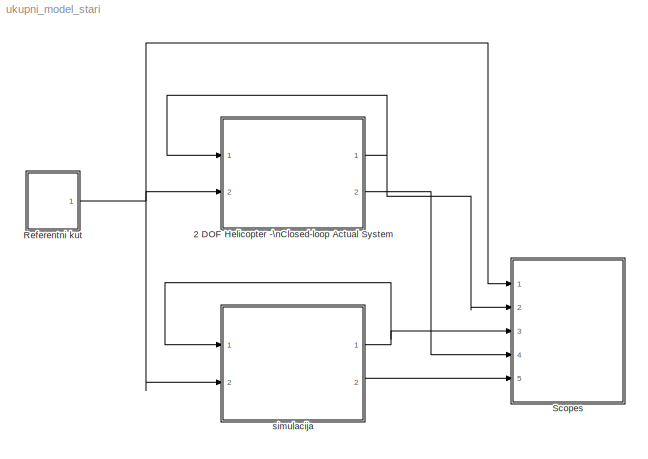
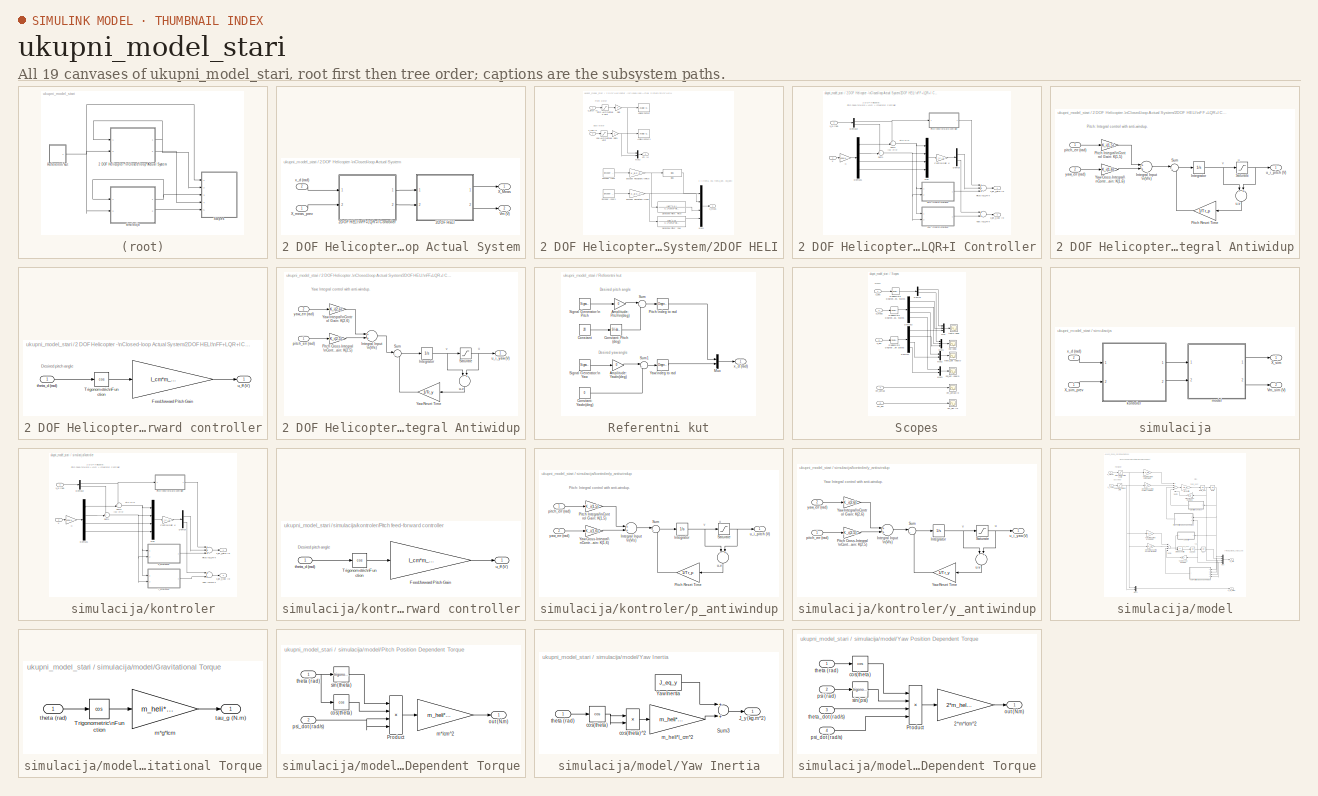
[diagram: thumbnail index - all 19 canvases of the model, root first then tree order]
MODEL ukupni_model_stari
KIND model
BLOCK [SubSystem] 2 DOF Helicopter -\nClosed-loop Actual System
  Ports = [2, 2]
  RequestExecContextInheritance = off
  SID = 166
  Variant = off
BLOCK [SubSystem] 2 DOF Helicopter -\nClosed-loop Actual System/2DOF HELI
  Ports = [2, 2]
  RequestExecContextInheritance = off
  SID = 171
  Variant = off
BLOCK [Reference] 2 DOF Helicopter -\nClosed-loop Actual System/2DOF HELI/Analog Output  REF=rtwinlib/Analog Output
  AttributesFormatString = Quanser\\nMultiQ-PCI [auto]
  Channels = 1
  DrvAddress = 4294967295
  DrvName = Quanser/MultiQ-PCI
  DrvOptions = zeros(1,0)
  FinalValue = 0
  InitialValue = 0
  MaxMissedTicks = 10
  Ports = [1]
  RangeMode = 1
  SID = 174
  SampleTime = 1e-3
  ShowMissedTicks = off
  SourceBlock = rtwinlib/Analog Output
  SourceType = Simulink Desktop Real-Time Analog Output
  VoltRange = 1
  YieldWhenWaiting = off
BLOCK [Reference] 2 DOF Helicopter -\nClosed-loop Actual System/2DOF HELI/Analog Output1  REF=rtwinlib/Analog Output
  AttributesFormatString = Quanser\\nMultiQ-PCI [auto]
  Channels = 2
  DrvAddress = 4294967295
  DrvName = Quanser/MultiQ-PCI
  DrvOptions = zeros(1,0)
  FinalValue = 0
  InitialValue = 0
  MaxMissedTicks = 10
  Ports = [1]
  RangeMode = 1
  SID = 175
  SampleTime = 1e-3
  ShowMissedTicks = off
  SourceBlock = rtwinlib/Analog Output
  SourceType = Simulink Desktop Real-Time Analog Output
  VoltRange = 1
  YieldWhenWaiting = off
BLOCK [Bias] 2 DOF Helicopter -\nClosed-loop Actual System/2DOF HELI/Bias
  Bias = theta_0
  SID = 176
  SaturateOnIntegerOverflow = off
BLOCK [TransferFcn] 2 DOF Helicopter -\nClosed-loop Actual System/2DOF HELI/Derivative Filter: Pitch
  Denominator = [1 2*zetaf*wcf wcf^2]
  Numerator = [wcf^2 0 ]
  SID = 177
BLOCK [TransferFcn] 2 DOF Helicopter -\nClosed-loop Actual System/2DOF HELI/Derivative Filter: Yaw
  Denominator = [1 2*zetaf*wcf wcf^2]
  Numerator = [wcf^2 0]
  SID = 178
BLOCK [Reference] 2 DOF Helicopter -\nClosed-loop Actual System/2DOF HELI/Encoder Input  REF=rtwinlib/Encoder Input
  AttributesFormatString = Quanser\\nMultiQ-PCI [auto]
  Channels = 1
  DataType = 1
  DrvAddress = 4294967295
  DrvName = Quanser/MultiQ-PCI
  DrvOptions = zeros(1,0)
  IndexPulse = 2
  InputFilter = Inf
  MaxMissedTicks = 10
  Ports = [0, 1]
  QuadMode = 3
  SID = 179
  SampleTime = 1e-3
  ShowMissedTicks = off
  SourceBlock = rtwinlib/Encoder Input
  SourceType = Simulink Desktop Real-Time Encoder Input
  YieldWhenWaiting = off
BLOCK [Reference] 2 DOF Helicopter -\nClosed-loop Actual System/2DOF HELI/Encoder Input1  REF=rtwinlib/Encoder Input
  AttributesFormatString = Quanser\\nMultiQ-PCI [auto]
  Channels = 2
  DataType = 1
  DrvAddress = 4294967295
  DrvName = Quanser/MultiQ-PCI
  DrvOptions = zeros(1,0)
  IndexPulse = 2
  InputFilter = Inf
  MaxMissedTicks = 10
  Ports = [0, 1]
  QuadMode = 3
  SID = 180
  SampleTime = 1e-3
  ShowMissedTicks = off
  SourceBlock = rtwinlib/Encoder Input
  SourceType = Simulink Desktop Real-Time Encoder Input
  YieldWhenWaiting = off
BLOCK [Gain] 2 DOF Helicopter -\nClosed-loop Actual System/2DOF HELI/Encoder Resolution:\nPitch 
  Gain = K_EC_P
  OutDataTypeStr = Inherit: Inherit via internal rule
  ParamDataTypeStr = Inherit: Inherit via internal rule
  SID = 181
  SaturateOnIntegerOverflow = off
BLOCK [Gain] 2 DOF Helicopter -\nClosed-loop Actual System/2DOF HELI/Encoder Resolution:\nYaw
  Gain = K_EC_Y
  OutDataTypeStr = Inherit: Inherit via internal rule
  ParamDataTypeStr = Inherit: Inherit via internal rule
  SID = 182
  SaturateOnIntegerOverflow = off
BLOCK [Gain] 2 DOF Helicopter -\nClosed-loop Actual System/2DOF HELI/Gain
  OutDataTypeStr = Inherit: Inherit via internal rule
  ParamDataTypeStr = Inherit: Inherit via internal rule
  SID = 340
  SaturateOnIntegerOverflow = off
BLOCK [Gain] 2 DOF Helicopter -\nClosed-loop Actual System/2DOF HELI/Gain1
  Gain = -1
  OutDataTypeStr = Inherit: Inherit via internal rule
  ParamDataTypeStr = Inherit: Inherit via internal rule
  SID = 364
  SaturateOnIntegerOverflow = off
BLOCK [Mux] 2 DOF Helicopter -\nClosed-loop Actual System/2DOF HELI/Mux1
  DisplayOption = bar
  Ports = [4, 1]
  SID = 183
BLOCK [Mux] 2 DOF Helicopter -\nClosed-loop Actual System/2DOF HELI/Mux2
  DisplayOption = bar
  Inputs = 2
  Ports = [2, 1]
  SID = 184
BLOCK [Saturate] 2 DOF Helicopter -\nClosed-loop Actual System/2DOF HELI/Pitch AMP\nVoltage Limit
  InputPortMap = u0
  LowerLimit = - max_u
  Ports = [1, 1]
  SID = 185
  UpperLimit = max_u
BLOCK [Outport] 2 DOF Helicopter -\nClosed-loop Actual System/2DOF HELI/Vm (V)
  IconDisplay = Port number
  Port = 2
  SID = 190
BLOCK [Outport] 2 DOF Helicopter -\nClosed-loop Actual System/2DOF HELI/X_meas
  IconDisplay = Port number
  SID = 189
BLOCK [Saturate] 2 DOF Helicopter -\nClosed-loop Actual System/2DOF HELI/Yaw AMP\nVoltage Limit
  InputPortMap = u0
  LowerLimit = - max_u
  Ports = [1, 1]
  SID = 187
  UpperLimit = max_u
BLOCK [Inport] 2 DOF Helicopter -\nClosed-loop Actual System/2DOF HELI/u_pitch (V)
  IconDisplay = Port number
  SID = 172
BLOCK [Inport] 2 DOF Helicopter -\nClosed-loop Actual System/2DOF HELI/u_yaw (V)
  IconDisplay = Port number
  Port = 2
  SID = 173
BLOCK [SubSystem] 2 DOF Helicopter -\nClosed-loop Actual System/2DOF HELI:\nFF+LQR+I Controller
  Ports = [2, 2]
  RequestExecContextInheritance = off
  SID = 220
  Variant = off
BLOCK [Gain] 2 DOF Helicopter -\nClosed-loop Actual System/2DOF HELI:\nFF+LQR+I Controller/-X
  Gain = -eye(4,4)
  Multiplication = Matrix(K*u)
  OutDataTypeStr = Inherit: Inherit via internal rule
  ParamDataTypeStr = Inherit: Inherit via internal rule
  SID = 224
  SaturateOnIntegerOverflow = off
BLOCK [Gain] 2 DOF Helicopter -\nClosed-loop Actual System/2DOF HELI:\nFF+LQR+I Controller/Control Gain: K
  Gain = K_i(:,1:4)
  Multiplication = Matrix(K*u)
  OutDataTypeStr = Inherit: Inherit via internal rule
  ParamDataTypeStr = Inherit: Inherit via internal rule
  SID = 225
  SaturateOnIntegerOverflow = off
BLOCK [Demux] 2 DOF Helicopter -\nClosed-loop Actual System/2DOF HELI:\nFF+LQR+I Controller/Demux
  DisplayOption = bar
  Outputs = 2
  Ports = [1, 2]
  SID = 226
BLOCK [Demux] 2 DOF Helicopter -\nClosed-loop Actual System/2DOF HELI:\nFF+LQR+I Controller/Demux1
  DisplayOption = bar
  Ports = [1, 4]
  SID = 227
BLOCK [Demux] 2 DOF Helicopter -\nClosed-loop Actual System/2DOF HELI:\nFF+LQR+I Controller/Demux2
  DisplayOption = bar
  Outputs = 2
  Ports = [1, 2]
  SID = 228
BLOCK [Mux] 2 DOF Helicopter -\nClosed-loop Actual System/2DOF HELI:\nFF+LQR+I Controller/Mux
  DisplayOption = bar
  Ports = [4, 1]
  SID = 229
BLOCK [SubSystem] 2 DOF Helicopter -\nClosed-loop Actual System/2DOF HELI:\nFF+LQR+I Controller/Pitch Integral Antiwidup
  Ports = [2, 1]
  RequestExecContextInheritance = off
  SID = 230
  Variant = off
BLOCK [Sum] 2 DOF Helicopter -\nClosed-loop Actual System/2DOF HELI:\nFF+LQR+I Controller/Pitch Integral Antiwidup/Integral Input \n(V//s)
  InputSameDT = off
  OutDataTypeStr = Inherit: Inherit via internal rule
  Ports = [2, 1]
  SID = 234
  SaturateOnIntegerOverflow = off
BLOCK [Integrator] 2 DOF Helicopter -\nClosed-loop Actual System/2DOF HELI:\nFF+LQR+I Controller/Pitch Integral Antiwidup/Integrator
  Ports = [1, 1]
  SID = 235
BLOCK [Gain] 2 DOF Helicopter -\nClosed-loop Actual System/2DOF HELI:\nFF+LQR+I Controller/Pitch Integral Antiwidup/Pitch Integral\nControl Gain: K(1,5)
  Gain = K_i(1,5)
  Multiplication = Matrix(K*u)
  OutDataTypeStr = Inherit: Inherit via internal rule
  ParamDataTypeStr = Inherit: Inherit via internal rule
  SID = 236
  SaturateOnIntegerOverflow = off
BLOCK [Gain] 2 DOF Helicopter -\nClosed-loop Actual System/2DOF HELI:\nFF+LQR+I Controller/Pitch Integral Antiwidup/Pitch Reset Time
  Gain = 1/Tr_p
  OutDataTypeStr = Inherit: Inherit via internal rule
  ParamDataTypeStr = Inherit: Inherit via internal rule
  SID = 237
  SaturateOnIntegerOverflow = off
BLOCK [Saturate] 2 DOF Helicopter -\nClosed-loop Actual System/2DOF HELI:\nFF+LQR+I Controller/Pitch Integral Antiwidup/Saturate
  InputPortMap = u0
  LowerLimit = -max_u
  Ports = [1, 1]
  SID = 238
  UpperLimit = max_u
BLOCK [Sum] 2 DOF Helicopter -\nClosed-loop Actual System/2DOF HELI:\nFF+LQR+I Controller/Pitch Integral Antiwidup/Sum
  IconShape = round
  InputSameDT = off
  Inputs = |++
  OutDataTypeStr = Inherit: Inherit via internal rule
  Ports = [2, 1]
  SID = 239
  SaturateOnIntegerOverflow = off
BLOCK [Gain] 2 DOF Helicopter -\nClosed-loop Actual System/2DOF HELI:\nFF+LQR+I Controller/Pitch Integral Antiwidup/Yaw Cross-Integral\nControl Gain: K(1,6)
  Gain = K_i(1,6)
  Multiplication = Matrix(K*u)
  OutDataTypeStr = Inherit: Inherit via internal rule
  ParamDataTypeStr = Inherit: Inherit via internal rule
  SID = 240
  SaturateOnIntegerOverflow = off
BLOCK [Inport] 2 DOF Helicopter -\nClosed-loop Actual System/2DOF HELI:\nFF+LQR+I Controller/Pitch Integral Antiwidup/pitch_err (rad)
  IconDisplay = Port number
  SID = 231
BLOCK [Sum] 2 DOF Helicopter -\nClosed-loop Actual System/2DOF HELI:\nFF+LQR+I Controller/Pitch Integral Antiwidup/u-v
  InputSameDT = off
  Inputs = -+
  OutDataTypeStr = Inherit: Inherit via internal rule
  Ports = [2, 1]
  SID = 241
  SaturateOnIntegerOverflow = off
BLOCK [Outport] 2 DOF Helicopter -\nClosed-loop Actual System/2DOF HELI:\nFF+LQR+I Controller/Pitch Integral Antiwidup/u_i_pitch (V)
  IconDisplay = Port number
  SID = 242
BLOCK [Inport] 2 DOF Helicopter -\nClosed-loop Actual System/2DOF HELI:\nFF+LQR+I Controller/Pitch Integral Antiwidup/yaw_err (rad)
  IconDisplay = Port number
  Port = 2
  SID = 232
BLOCK [SubSystem] 2 DOF Helicopter -\nClosed-loop Actual System/2DOF HELI:\nFF+LQR+I Controller/Pitch feed-forward controller
  Ports = [1, 1]
  RequestExecContextInheritance = off
  SID = 246
  Variant = off
BLOCK [Gain] 2 DOF Helicopter -\nClosed-loop Actual System/2DOF HELI:\nFF+LQR+I Controller/Pitch feed-forward controller/Feed-forward Pitch Gain
  Gain = l_cm*m_heli*g / K_pp
  OutDataTypeStr = Inherit: Inherit via internal rule
  ParamDataTypeStr = Inherit: Inherit via internal rule
  SID = 248
  SaturateOnIntegerOverflow = off
BLOCK [Trigonometry] 2 DOF Helicopter -\nClosed-loop Actual System/2DOF HELI:\nFF+LQR+I Controller/Pitch feed-forward controller/Trigonometric\nFunction
  Operator = cos
  OutputSignalType = real
  Ports = [1, 1]
  SID = 249
BLOCK [Inport] 2 DOF Helicopter -\nClosed-loop Actual System/2DOF HELI:\nFF+LQR+I Controller/Pitch feed-forward controller/theta_d (rad)
  IconDisplay = Port number
  SID = 247
BLOCK [Outport] 2 DOF Helicopter -\nClosed-loop Actual System/2DOF HELI:\nFF+LQR+I Controller/Pitch feed-forward controller/u_ff (V)
  IconDisplay = Port number
  SID = 250
BLOCK [Sum] 2 DOF Helicopter -\nClosed-loop Actual System/2DOF HELI:\nFF+LQR+I Controller/Pitch:\nLQR+I
  InputSameDT = off
  Inputs = +++
  OutDataTypeStr = Inherit: Inherit via internal rule
  Ports = [3, 1]
  SID = 252
  SaturateOnIntegerOverflow = off
BLOCK [Sum] 2 DOF Helicopter -\nClosed-loop Actual System/2DOF HELI:\nFF+LQR+I Controller/Sum1
  IconShape = round
  InputSameDT = off
  Inputs = ++|
  OutDataTypeStr = Inherit: Inherit via internal rule
  Ports = [2, 1]
  SID = 253
  SaturateOnIntegerOverflow = off
BLOCK [Sum] 2 DOF Helicopter -\nClosed-loop Actual System/2DOF HELI:\nFF+LQR+I Controller/Sum2
  IconShape = round
  InputSameDT = off
  Inputs = ++|
  OutDataTypeStr = Inherit: Inherit via internal rule
  Ports = [2, 1]
  SID = 254
  SaturateOnIntegerOverflow = off
BLOCK [Inport] 2 DOF Helicopter -\nClosed-loop Actual System/2DOF HELI:\nFF+LQR+I Controller/X
  IconDisplay = Port number
  Port = 2
  SID = 222
BLOCK [Inport] 2 DOF Helicopter -\nClosed-loop Actual System/2DOF HELI:\nFF+LQR+I Controller/X_d (rad)
  IconDisplay = Port number
  SID = 221
BLOCK [SubSystem] 2 DOF Helicopter -\nClosed-loop Actual System/2DOF HELI:\nFF+LQR+I Controller/Yaw Integral Antiwidup
  Ports = [2, 1]
  RequestExecContextInheritance = off
  SID = 255
  Variant = off
BLOCK [Sum] 2 DOF Helicopter -\nClosed-loop Actual System/2DOF HELI:\nFF+LQR+I Controller/Yaw Integral Antiwidup/Integral Input \n(V//s)
  InputSameDT = off
  OutDataTypeStr = Inherit: Inherit via internal rule
  Ports = [2, 1]
  SID = 259
  SaturateOnIntegerOverflow = off
BLOCK [Integrator] 2 DOF Helicopter -\nClosed-loop Actual System/2DOF HELI:\nFF+LQR+I Controller/Yaw Integral Antiwidup/Integrator
  Ports = [1, 1]
  SID = 260
BLOCK [Gain] 2 DOF Helicopter -\nClosed-loop Actual System/2DOF HELI:\nFF+LQR+I Controller/Yaw Integral Antiwidup/Pitch Cross-Integral\nControl Gain: K(2,5)
  Gain = K_i(2,5)
  Multiplication = Matrix(K*u)
  OutDataTypeStr = Inherit: Inherit via internal rule
  ParamDataTypeStr = Inherit: Inherit via internal rule
  SID = 261
  SaturateOnIntegerOverflow = off
BLOCK [Saturate] 2 DOF Helicopter -\nClosed-loop Actual System/2DOF HELI:\nFF+LQR+I Controller/Yaw Integral Antiwidup/Saturate
  InputPortMap = u0
  LowerLimit = -max_u
  Ports = [1, 1]
  SID = 262
  UpperLimit = max_u
BLOCK [Sum] 2 DOF Helicopter -\nClosed-loop Actual System/2DOF HELI:\nFF+LQR+I Controller/Yaw Integral Antiwidup/Sum
  IconShape = round
  InputSameDT = off
  Inputs = |++
  OutDataTypeStr = Inherit: Inherit via internal rule
  Ports = [2, 1]
  SID = 263
  SaturateOnIntegerOverflow = off
BLOCK [Gain] 2 DOF Helicopter -\nClosed-loop Actual System/2DOF HELI:\nFF+LQR+I Controller/Yaw Integral Antiwidup/Yaw Integral\nControl Gain: K(2,6)
  Gain = K_i(2,6)
  Multiplication = Matrix(K*u)
  OutDataTypeStr = Inherit: Inherit via internal rule
  ParamDataTypeStr = Inherit: Inherit via internal rule
  SID = 264
  SaturateOnIntegerOverflow = off
BLOCK [Gain] 2 DOF Helicopter -\nClosed-loop Actual System/2DOF HELI:\nFF+LQR+I Controller/Yaw Integral Antiwidup/Yaw Reset Time
  Gain = 1/Tr_y
  OutDataTypeStr = Inherit: Inherit via internal rule
  ParamDataTypeStr = Inherit: Inherit via internal rule
  SID = 265
  SaturateOnIntegerOverflow = off
BLOCK [Inport] 2 DOF Helicopter -\nClosed-loop Actual System/2DOF HELI:\nFF+LQR+I Controller/Yaw Integral Antiwidup/pitch_err (rad)
  IconDisplay = Port number
  SID = 256
BLOCK [Sum] 2 DOF Helicopter -\nClosed-loop Actual System/2DOF HELI:\nFF+LQR+I Controller/Yaw Integral Antiwidup/u-v
  InputSameDT = off
  Inputs = -+
  OutDataTypeStr = Inherit: Inherit via internal rule
  Ports = [2, 1]
  SID = 266
  SaturateOnIntegerOverflow = off
BLOCK [Outport] 2 DOF Helicopter -\nClosed-loop Actual System/2DOF HELI:\nFF+LQR+I Controller/Yaw Integral Antiwidup/u_i_yaw (V)
  IconDisplay = Port number
  SID = 267
BLOCK [Inport] 2 DOF Helicopter -\nClosed-loop Actual System/2DOF HELI:\nFF+LQR+I Controller/Yaw Integral Antiwidup/yaw_err (rad)
  IconDisplay = Port number
  Port = 2
  SID = 257
BLOCK [Sum] 2 DOF Helicopter -\nClosed-loop Actual System/2DOF HELI:\nFF+LQR+I Controller/Yaw:\nLQR+I
  InputSameDT = off
  OutDataTypeStr = Inherit: Inherit via internal rule
  Ports = [2, 1]
  SID = 271
  SaturateOnIntegerOverflow = off
BLOCK [Outport] 2 DOF Helicopter -\nClosed-loop Actual System/2DOF HELI:\nFF+LQR+I Controller/u_lqr_i_pitch (V)
  IconDisplay = Port number
  SID = 273
BLOCK [Outport] 2 DOF Helicopter -\nClosed-loop Actual System/2DOF HELI:\nFF+LQR+I Controller/u_lqr_i_yaw (V)
  IconDisplay = Port number
  Port = 2
  SID = 274
BLOCK [Outport] 2 DOF Helicopter -\nClosed-loop Actual System/Vm (V)
  IconDisplay = Port number
  Port = 2
  SID = 339
BLOCK [Outport] 2 DOF Helicopter -\nClosed-loop Actual System/X_Meas
  IconDisplay = Port number
  SID = 338
BLOCK [Inport] 2 DOF Helicopter -\nClosed-loop Actual System/X_meas_prev
  IconDisplay = Port number
  SID = 167
BLOCK [Inport] 2 DOF Helicopter -\nClosed-loop Actual System/x_d (rad)
  IconDisplay = Port number
  Port = 2
  SID = 168
BLOCK [SubSystem] Referentni kut
  Ports = [0, 1]
  RequestExecContextInheritance = off
  SID = 7
  Variant = off
BLOCK [Gain] Referentni kut/Amplitude: Pitch\n(deg)
  Gain = 0
  OutDataTypeStr = Inherit: Inherit via internal rule
  ParamDataTypeStr = Inherit: Inherit via internal rule
  SID = 8
  SaturateOnIntegerOverflow = off
BLOCK [Gain] Referentni kut/Amplitude: Yaw\n(deg)
  Gain = 0
  OutDataTypeStr = Inherit: Inherit via internal rule
  ParamDataTypeStr = Inherit: Inherit via internal rule
  SID = 9
  SaturateOnIntegerOverflow = off
BLOCK [Constant] Referentni kut/Constant
  SID = 10
  Value = 20
BLOCK [Reference] Referentni kut/Constant: Pitch (deg)  REF=simulink/Math\nOperations/Slider\nGain
  Ports = [1, 1]
  SID = 11
  SourceBlock = simulink/Math\nOperations/Slider\nGain
  SourceType = Slider Gain
  gain = 1
  high = 2
  low = 1
BLOCK [Constant] Referentni kut/Constant: Yaw\n(deg)
  SID = 12
  Value = 0
BLOCK [Mux] Referentni kut/Mux
  DisplayOption = bar
  Inputs = 2
  Ports = [2, 1]
  SID = 13
BLOCK [Reference] Referentni kut/Pitch:\ndeg to rad  REF=simulink_extras/Transformations/Degrees to\nRadians
  Ports = [1, 1]
  SID = 14
  SourceBlock = simulink_extras/Transformations/Degrees to\nRadians
  SourceType = DegreesToRadians
BLOCK [SignalGenerator] Referentni kut/Signal Generator:\nPitch
  Amplitude = 15
  Frequency = 0.05
  Ports = [0, 1]
  SID = 15
  WaveForm = square
BLOCK [SignalGenerator] Referentni kut/Signal Generator:\nYaw
  Amplitude = 30
  Frequency = 0.05
  Ports = [0, 1]
  SID = 16
  WaveForm = square
BLOCK [Sum] Referentni kut/Sum
  IconShape = round
  InputSameDT = off
  Inputs = |++
  OutDataTypeStr = Inherit: Inherit via internal rule
  Ports = [2, 1]
  SID = 17
  SaturateOnIntegerOverflow = off
BLOCK [Sum] Referentni kut/Sum1
  IconShape = round
  InputSameDT = off
  Inputs = |++
  OutDataTypeStr = Inherit: Inherit via internal rule
  Ports = [2, 1]
  SID = 18
  SaturateOnIntegerOverflow = off
BLOCK [Reference] Referentni kut/Yaw:\ndeg to rad  REF=simulink_extras/Transformations/Degrees to\nRadians
  Ports = [1, 1]
  SID = 19
  SourceBlock = simulink_extras/Transformations/Degrees to\nRadians
  SourceType = DegreesToRadians
BLOCK [Outport] Referentni kut/x_d (rad)
  IconDisplay = Port number
  SID = 20
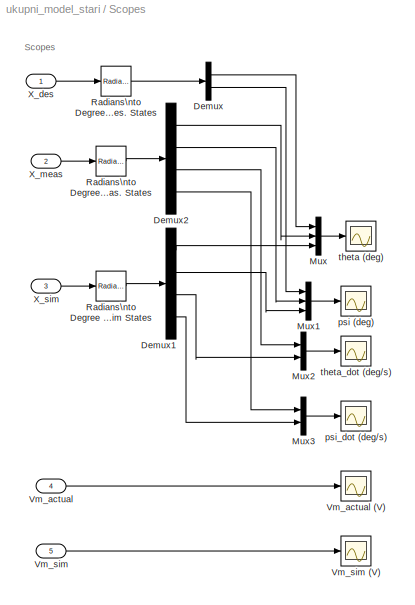
BLOCK [SubSystem] Scopes
  Ports = [5]
  RequestExecContextInheritance = off
  SID = 341
  Variant = off
BLOCK [Demux] Scopes/Demux
  DisplayOption = bar
  Outputs = 2
  Ports = [1, 2]
  SID = 347
BLOCK [Demux] Scopes/Demux1
  DisplayOption = bar
  Ports = [1, 4]
  SID = 348
BLOCK [Demux] Scopes/Demux2
  DisplayOption = bar
  Ports = [1, 4]
  SID = 349
BLOCK [Mux] Scopes/Mux
  DisplayOption = bar
  Inputs = 3
  Ports = [3, 1]
  SID = 350
BLOCK [Mux] Scopes/Mux1
  DisplayOption = bar
  Inputs = 3
  Ports = [3, 1]
  SID = 351
BLOCK [Mux] Scopes/Mux2
  DisplayOption = bar
  Inputs = 2
  Ports = [2, 1]
  SID = 352
BLOCK [Mux] Scopes/Mux3
  DisplayOption = bar
  Inputs = 2
  Ports = [2, 1]
  SID = 353
BLOCK [Reference] Scopes/Radians\nto Degree -\nSim States  REF=simulink_extras/Transformations/Radians\nto Degrees
  Ports = [1, 1]
  SID = 354
  SourceBlock = simulink_extras/Transformations/Radians\nto Degrees
  SourceType = RadiansToDegrees
BLOCK [Reference] Scopes/Radians\nto Degrees -\nDes. States  REF=simulink_extras/Transformations/Radians\nto Degrees
  Ports = [1, 1]
  SID = 355
  SourceBlock = simulink_extras/Transformations/Radians\nto Degrees
  SourceType = RadiansToDegrees
BLOCK [Reference] Scopes/Radians\nto Degrees -\nMeas. States  REF=simulink_extras/Transformations/Radians\nto Degrees
  Ports = [1, 1]
  SID = 356
  SourceBlock = simulink_extras/Transformations/Radians\nto Degrees
  SourceType = RadiansToDegrees
BLOCK [Inport] Scopes/Vm_actual
  IconDisplay = Port number
  Port = 4
  SID = 345
BLOCK [Scope] Scopes/Vm_actual (V)
  DataFormat = Array
  Decimation = 1
  Grid = on
  LimitDataPoints = off
  MaxDataPoints = 5000
  NumInputPorts = 1
  Ports = [1]
  SID = 357
  SampleInput = off
  SampleTime = -1
  SaveName = Vm
  SaveToWorkspace = on
  ShowLegends = off
  TickLabels = on
  TimeRange = auto
  YMax = 4.375
  YMin = -4.375
  ZoomMode = on
BLOCK [Inport] Scopes/Vm_sim
  IconDisplay = Port number
  Port = 5
  SID = 346
BLOCK [Scope] Scopes/Vm_sim (V)
  DataFormat = Array
  Decimation = 1
  Grid = on
  LimitDataPoints = on
  MaxDataPoints = 5000
  NumInputPorts = 1
  Ports = [1]
  SID = 358
  SampleInput = off
  SampleTime = -1
  SaveName = ScopeData5
  SaveToWorkspace = off
  ShowLegends = off
  TickLabels = on
  TimeRange = 1.000000
  YMax = 250
  YMin = -250
  ZoomMode = on
BLOCK [Inport] Scopes/X_des
  IconDisplay = Port number
  SID = 342
BLOCK [Inport] Scopes/X_meas
  IconDisplay = Port number
  Port = 2
  SID = 343
BLOCK [Inport] Scopes/X_sim
  IconDisplay = Port number
  Port = 3
  SID = 344
BLOCK [Scope] Scopes/psi (deg)
  DataFormat = Array
  Decimation = 1
  Grid = on
  LimitDataPoints = off
  MaxDataPoints = 5000
  NumInputPorts = 1
  Ports = [1]
  SID = 359
  SampleInput = off
  SampleTime = -1
  SaveName = psi
  SaveToWorkspace = on
  ShowLegends = off
  TickLabels = on
  TimeRange = auto
  YMax = 11.84922
  YMin = -4.64301
  ZoomMode = on
BLOCK [Scope] Scopes/psi_dot (deg//s)
  DataFormat = Array
  Decimation = 1
  Grid = on
  LimitDataPoints = on
  MaxDataPoints = 5000
  NumInputPorts = 1
  Ports = [1]
  SID = 360
  SampleInput = off
  SampleTime = -1
  SaveName = ScopeData3
  SaveToWorkspace = off
  ShowLegends = off
  TickLabels = on
  TimeRange = 1.000000
  YMax = 250
  YMin = -250
  ZoomMode = on
BLOCK [Scope] Scopes/theta (deg)
  DataFormat = Array
  Decimation = 1
  Grid = on
  LimitDataPoints = off
  MaxDataPoints = 5000
  NumInputPorts = 1
  Ports = [1]
  SID = 361
  SampleInput = off
  SampleTime = -1
  SaveName = theta
  SaveToWorkspace = on
  ShowLegends = off
  TickLabels = on
  TimeRange = auto
  YMax = 20.2875
  YMin = 19.9125
  ZoomMode = on
BLOCK [Scope] Scopes/theta_dot (deg//s)
  DataFormat = Array
  Decimation = 1
  Grid = on
  LimitDataPoints = on
  MaxDataPoints = 5000
  NumInputPorts = 1
  Ports = [1]
  SID = 362
  SampleInput = off
  SampleTime = -1
  SaveName = ScopeData2
  SaveToWorkspace = off
  ShowLegends = off
  TickLabels = on
  TimeRange = 1.000000
  YMax = 250
  YMin = -250
  ZoomMode = on
BLOCK [SubSystem] simulacija
  Ports = [2, 2]
  RequestExecContextInheritance = off
  SID = 28
  Variant = off
BLOCK [Outport] simulacija/Vm_sim (V)
  IconDisplay = Port number
  Port = 2
  SID = 150
BLOCK [Outport] simulacija/X_sim
  IconDisplay = Port number
  SID = 149
BLOCK [Inport] simulacija/X_sim_prev
  IconDisplay = Port number
  SID = 29
BLOCK [SubSystem] simulacija/kontroler
  Ports = [2, 2]
  RequestExecContextInheritance = off
  SID = 31
  Variant = off
BLOCK [Gain] simulacija/kontroler/-X
  Gain = -eye(4,4)
  Multiplication = Matrix(K*u)
  OutDataTypeStr = Inherit: Inherit via internal rule
  ParamDataTypeStr = Inherit: Inherit via internal rule
  SID = 34
  SaturateOnIntegerOverflow = off
BLOCK [Gain] simulacija/kontroler/Control Gain: K
  Gain = K_i(:,1:4)
  Multiplication = Matrix(K*u)
  OutDataTypeStr = Inherit: Inherit via internal rule
  ParamDataTypeStr = Inherit: Inherit via internal rule
  SID = 35
  SaturateOnIntegerOverflow = off
BLOCK [Demux] simulacija/kontroler/Demux
  DisplayOption = bar
  Outputs = 2
  Ports = [1, 2]
  SID = 36
BLOCK [Demux] simulacija/kontroler/Demux1
  DisplayOption = bar
  Ports = [1, 4]
  SID = 37
BLOCK [Demux] simulacija/kontroler/Demux2
  DisplayOption = bar
  Outputs = 2
  Ports = [1, 2]
  SID = 38
BLOCK [Mux] simulacija/kontroler/Mux
  DisplayOption = bar
  Ports = [4, 1]
  SID = 39
BLOCK [SubSystem] simulacija/kontroler/Pitch feed-forward controller
  Ports = [1, 1]
  RequestExecContextInheritance = off
  SID = 40
  Variant = off
BLOCK [Gain] simulacija/kontroler/Pitch feed-forward controller/Feed-forward Pitch Gain
  Gain = l_cm*m_heli*g / K_pp
  OutDataTypeStr = Inherit: Inherit via internal rule
  ParamDataTypeStr = Inherit: Inherit via internal rule
  SID = 42
  SaturateOnIntegerOverflow = off
BLOCK [Trigonometry] simulacija/kontroler/Pitch feed-forward controller/Trigonometric\nFunction
  Operator = cos
  OutputSignalType = real
  Ports = [1, 1]
  SID = 43
BLOCK [Inport] simulacija/kontroler/Pitch feed-forward controller/theta_d (rad)
  IconDisplay = Port number
  SID = 41
BLOCK [Outport] simulacija/kontroler/Pitch feed-forward controller/u_ff (V)
  IconDisplay = Port number
  SID = 44
BLOCK [Sum] simulacija/kontroler/Pitch:\nLQR+I
  InputSameDT = off
  Inputs = +++
  OutDataTypeStr = Inherit: Inherit via internal rule
  Ports = [3, 1]
  SID = 46
  SaturateOnIntegerOverflow = off
BLOCK [Sum] simulacija/kontroler/Sum1
  IconShape = round
  InputSameDT = off
  Inputs = ++|
  OutDataTypeStr = Inherit: Inherit via internal rule
  Ports = [2, 1]
  SID = 47
  SaturateOnIntegerOverflow = off
BLOCK [Sum] simulacija/kontroler/Sum2
  IconShape = round
  InputSameDT = off
  Inputs = ++|
  OutDataTypeStr = Inherit: Inherit via internal rule
  Ports = [2, 1]
  SID = 48
  SaturateOnIntegerOverflow = off
BLOCK [Inport] simulacija/kontroler/X
  IconDisplay = Port number
  Port = 2
  SID = 33
BLOCK [Inport] simulacija/kontroler/X_d (rad)
  IconDisplay = Port number
  SID = 32
BLOCK [Sum] simulacija/kontroler/Yaw:\nLQR+I
  InputSameDT = off
  OutDataTypeStr = Inherit: Inherit via internal rule
  Ports = [2, 1]
  SID = 49
  SaturateOnIntegerOverflow = off
BLOCK [SubSystem] simulacija/kontroler/p_antiwindup
  Ports = [2, 1]
  RequestExecContextInheritance = off
  SID = 50
  Variant = off
BLOCK [Sum] simulacija/kontroler/p_antiwindup/Integral Input \n(V//s)
  InputSameDT = off
  OutDataTypeStr = Inherit: Inherit via internal rule
  Ports = [2, 1]
  SID = 53
  SaturateOnIntegerOverflow = off
BLOCK [Integrator] simulacija/kontroler/p_antiwindup/Integrator
  Ports = [1, 1]
  SID = 54
BLOCK [Gain] simulacija/kontroler/p_antiwindup/Pitch Integral\nControl Gain: K(1,5)
  Gain = K_i(1,5)
  Multiplication = Matrix(K*u)
  OutDataTypeStr = Inherit: Inherit via internal rule
  ParamDataTypeStr = Inherit: Inherit via internal rule
  SID = 55
  SaturateOnIntegerOverflow = off
BLOCK [Gain] simulacija/kontroler/p_antiwindup/Pitch Reset Time
  Gain = 1/Tr_p
  OutDataTypeStr = Inherit: Inherit via internal rule
  ParamDataTypeStr = Inherit: Inherit via internal rule
  SID = 56
  SaturateOnIntegerOverflow = off
BLOCK [Saturate] simulacija/kontroler/p_antiwindup/Saturate
  InputPortMap = u0
  LowerLimit = -max_u
  Ports = [1, 1]
  SID = 57
  UpperLimit = max_u
BLOCK [Sum] simulacija/kontroler/p_antiwindup/Sum
  IconShape = round
  InputSameDT = off
  Inputs = |++
  OutDataTypeStr = Inherit: Inherit via internal rule
  Ports = [2, 1]
  SID = 58
  SaturateOnIntegerOverflow = off
BLOCK [Gain] simulacija/kontroler/p_antiwindup/Yaw Cross-Integral\nControl Gain: K(1,6)
  Gain = K_i(1,6)
  Multiplication = Matrix(K*u)
  OutDataTypeStr = Inherit: Inherit via internal rule
  ParamDataTypeStr = Inherit: Inherit via internal rule
  SID = 59
  SaturateOnIntegerOverflow = off
BLOCK [Inport] simulacija/kontroler/p_antiwindup/pitch_err (rad)
  IconDisplay = Port number
  SID = 51
BLOCK [Sum] simulacija/kontroler/p_antiwindup/u-v
  InputSameDT = off
  Inputs = -+
  OutDataTypeStr = Inherit: Inherit via internal rule
  Ports = [2, 1]
  SID = 60
  SaturateOnIntegerOverflow = off
BLOCK [Outport] simulacija/kontroler/p_antiwindup/u_i_pitch (V)
  IconDisplay = Port number
  SID = 61
BLOCK [Inport] simulacija/kontroler/p_antiwindup/yaw_err (rad)
  IconDisplay = Port number
  Port = 2
  SID = 52
BLOCK [Outport] simulacija/kontroler/u_lqr_i_pitch (V)
  IconDisplay = Port number
  SID = 80
BLOCK [Outport] simulacija/kontroler/u_lqr_i_yaw (V)
  IconDisplay = Port number
  Port = 2
  SID = 81
BLOCK [SubSystem] simulacija/kontroler/y_antiwindup
  Ports = [2, 1]
  RequestExecContextInheritance = off
  SID = 65
  Variant = off
BLOCK [Sum] simulacija/kontroler/y_antiwindup/Integral Input \n(V//s)
  InputSameDT = off
  OutDataTypeStr = Inherit: Inherit via internal rule
  Ports = [2, 1]
  SID = 68
  SaturateOnIntegerOverflow = off
BLOCK [Integrator] simulacija/kontroler/y_antiwindup/Integrator
  Ports = [1, 1]
  SID = 69
BLOCK [Gain] simulacija/kontroler/y_antiwindup/Pitch Cross-Integral\nControl Gain: K(2,5)
  Gain = K_i(2,5)
  Multiplication = Matrix(K*u)
  OutDataTypeStr = Inherit: Inherit via internal rule
  ParamDataTypeStr = Inherit: Inherit via internal rule
  SID = 70
  SaturateOnIntegerOverflow = off
BLOCK [Saturate] simulacija/kontroler/y_antiwindup/Saturate
  InputPortMap = u0
  LowerLimit = -max_u
  Ports = [1, 1]
  SID = 71
  UpperLimit = max_u
BLOCK [Sum] simulacija/kontroler/y_antiwindup/Sum
  IconShape = round
  InputSameDT = off
  Inputs = |++
  OutDataTypeStr = Inherit: Inherit via internal rule
  Ports = [2, 1]
  SID = 72
  SaturateOnIntegerOverflow = off
BLOCK [Gain] simulacija/kontroler/y_antiwindup/Yaw Integral\nControl Gain: K(2,6)
  Gain = K_i(2,6)
  Multiplication = Matrix(K*u)
  OutDataTypeStr = Inherit: Inherit via internal rule
  ParamDataTypeStr = Inherit: Inherit via internal rule
  SID = 73
  SaturateOnIntegerOverflow = off
BLOCK [Gain] simulacija/kontroler/y_antiwindup/Yaw Reset Time
  Gain = 1/Tr_y
  OutDataTypeStr = Inherit: Inherit via internal rule
  ParamDataTypeStr = Inherit: Inherit via internal rule
  SID = 74
  SaturateOnIntegerOverflow = off
BLOCK [Inport] simulacija/kontroler/y_antiwindup/pitch_err (rad)
  IconDisplay = Port number
  SID = 66
BLOCK [Sum] simulacija/kontroler/y_antiwindup/u-v
  InputSameDT = off
  Inputs = -+
  OutDataTypeStr = Inherit: Inherit via internal rule
  Ports = [2, 1]
  SID = 75
  SaturateOnIntegerOverflow = off
BLOCK [Outport] simulacija/kontroler/y_antiwindup/u_i_yaw (V)
  IconDisplay = Port number
  SID = 76
BLOCK [Inport] simulacija/kontroler/y_antiwindup/yaw_err (rad)
  IconDisplay = Port number
  Port = 2
  SID = 67
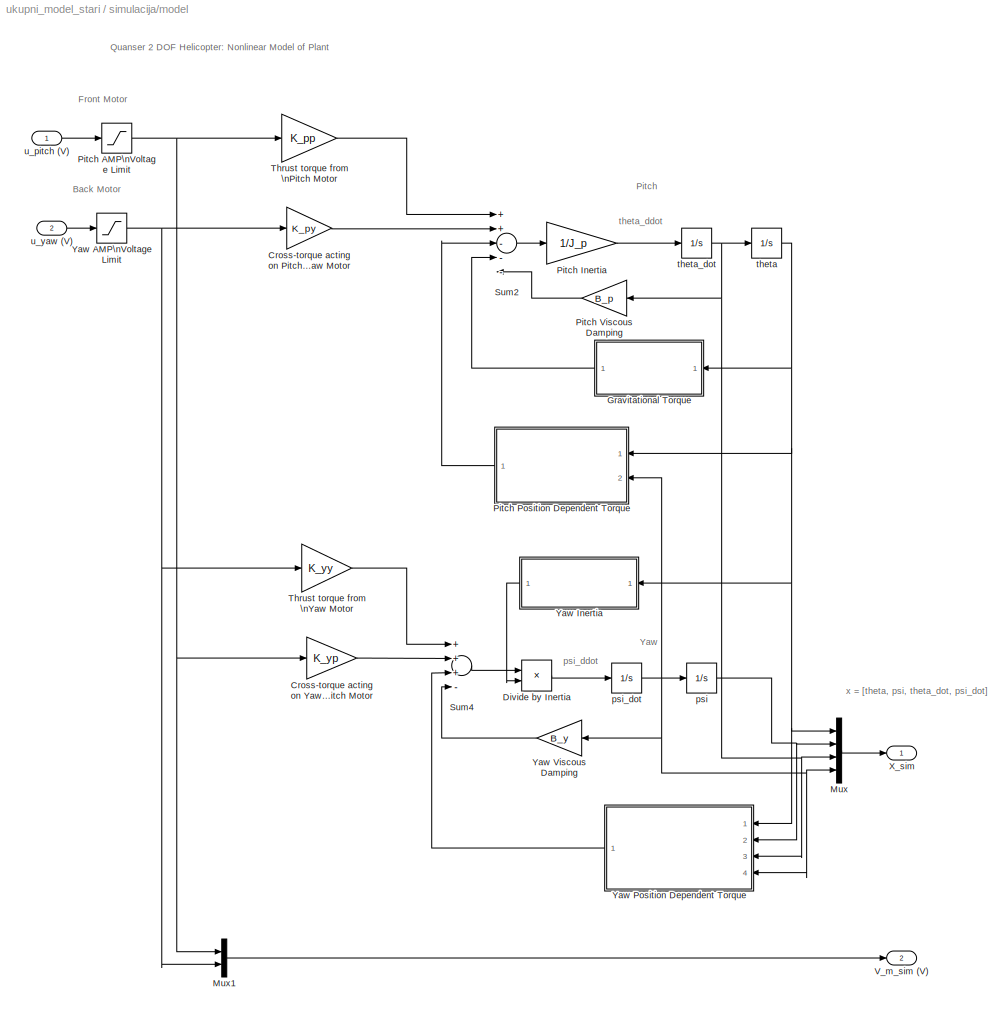
BLOCK [SubSystem] simulacija/model
  Ports = [2, 2]
  RequestExecContextInheritance = off
  SID = 87
  Variant = off
BLOCK [Gain] simulacija/model/Cross-torque acting on Pitch \nfrom Yaw Motor
  Gain = K_py
  OutDataTypeStr = Inherit: Inherit via internal rule
  ParamDataTypeStr = Inherit: Inherit via internal rule
  SID = 90
  SaturateOnIntegerOverflow = off
BLOCK [Gain] simulacija/model/Cross-torque acting on Yaw \nfrom Pitch Motor
  Gain = K_yp
  OutDataTypeStr = Inherit: Inherit via internal rule
  ParamDataTypeStr = Inherit: Inherit via internal rule
  SID = 91
  SaturateOnIntegerOverflow = off
BLOCK [Product] simulacija/model/Divide by Inertia
  InputSameDT = off
  Inputs = */
  OutDataTypeStr = Inherit: Inherit via internal rule
  Ports = [2, 1]
  RndMeth = Floor
  SID = 92
  SaturateOnIntegerOverflow = off
BLOCK [SubSystem] simulacija/model/Gravitational Torque
  Ports = [1, 1]
  RequestExecContextInheritance = off
  SID = 93
  Variant = off
BLOCK [Trigonometry] simulacija/model/Gravitational Torque/Trigonometric\nFunction
  Operator = cos
  OutputSignalType = real
  Ports = [1, 1]
  SID = 95
BLOCK [Gain] simulacija/model/Gravitational Torque/m*g*lcm
  Gain = m_heli*g*l_cm
  OutDataTypeStr = Inherit: Inherit via internal rule
  ParamDataTypeStr = Inherit: Inherit via internal rule
  SID = 96
  SaturateOnIntegerOverflow = off
BLOCK [Outport] simulacija/model/Gravitational Torque/tau_g (N.m)
  IconDisplay = Port number
  SID = 97
BLOCK [Inport] simulacija/model/Gravitational Torque/theta (rad)
  IconDisplay = Port number
  SID = 94
BLOCK [Mux] simulacija/model/Mux
  DisplayOption = bar
  Ports = [4, 1]
  SID = 98
BLOCK [Mux] simulacija/model/Mux1
  DisplayOption = bar
  Inputs = 2
  Ports = [2, 1]
  SID = 99
BLOCK [Saturate] simulacija/model/Pitch AMP\nVoltage Limit
  InputPortMap = u0
  LowerLimit = - max_u
  Ports = [1, 1]
  SID = 100
  UpperLimit = max_u
BLOCK [Gain] simulacija/model/Pitch Inertia
  Gain = 1/J_p
  OutDataTypeStr = Inherit: Inherit via internal rule
  ParamDataTypeStr = Inherit: Inherit via internal rule
  SID = 101
  SaturateOnIntegerOverflow = off
BLOCK [SubSystem] simulacija/model/Pitch Position Dependent Torque
  Ports = [2, 1]
  RequestExecContextInheritance = off
  SID = 102
  Variant = off
BLOCK [Product] simulacija/model/Pitch Position Dependent Torque/Product
  InputSameDT = off
  Inputs = 4
  OutDataTypeStr = Inherit: Inherit via internal rule
  Ports = [4, 1]
  SID = 105
  SaturateOnIntegerOverflow = off
BLOCK [Trigonometry] simulacija/model/Pitch Position Dependent Torque/cos(theta)
  Operator = cos
  OutputSignalType = real
  Ports = [1, 1]
  SID = 106
BLOCK [Gain] simulacija/model/Pitch Position Dependent Torque/m*lcm^2
  Gain = m_heli*l_cm^2
  OutDataTypeStr = Inherit: Inherit via internal rule
  ParamDataTypeStr = Inherit: Inherit via internal rule
  SID = 107
  SaturateOnIntegerOverflow = off
BLOCK [Outport] simulacija/model/Pitch Position Dependent Torque/out (N.m)
  IconDisplay = Port number
  SID = 109
BLOCK [Inport] simulacija/model/Pitch Position Dependent Torque/psi_dot (rad//s)
  IconDisplay = Port number
  Port = 2
  SID = 104
BLOCK [Trigonometry] simulacija/model/Pitch Position Dependent Torque/sin(theta)
  OutputSignalType = real
  Ports = [1, 1]
  SID = 108
BLOCK [Inport] simulacija/model/Pitch Position Dependent Torque/theta (rad)
  IconDisplay = Port number
  SID = 103
BLOCK [Gain] simulacija/model/Pitch Viscous Damping
  Gain = B_p
  OutDataTypeStr = Inherit: Inherit via internal rule
  ParamDataTypeStr = Inherit: Inherit via internal rule
  SID = 110
  SaturateOnIntegerOverflow = off
BLOCK [Sum] simulacija/model/Sum2
  InputSameDT = off
  Inputs = ++---
  OutDataTypeStr = Inherit: Inherit via internal rule
  Ports = [5, 1]
  SID = 111
  SaturateOnIntegerOverflow = off
BLOCK [Sum] simulacija/model/Sum4
  InputSameDT = off
  Inputs = +++-
  OutDataTypeStr = Inherit: Inherit via internal rule
  Ports = [4, 1]
  SID = 112
  SaturateOnIntegerOverflow = off
BLOCK [Gain] simulacija/model/Thrust torque from \nPitch Motor
  Gain = K_pp
  OutDataTypeStr = Inherit: Inherit via internal rule
  ParamDataTypeStr = Inherit: Inherit via internal rule
  SID = 113
  SaturateOnIntegerOverflow = off
BLOCK [Gain] simulacija/model/Thrust torque from \nYaw Motor
  Gain = K_yy
  OutDataTypeStr = Inherit: Inherit via internal rule
  ParamDataTypeStr = Inherit: Inherit via internal rule
  SID = 114
  SaturateOnIntegerOverflow = off
BLOCK [Outport] simulacija/model/V_m_sim (V)
  IconDisplay = Port number
  Port = 2
  SID = 140
BLOCK [Outport] simulacija/model/X_sim
  IconDisplay = Port number
  SID = 139
BLOCK [Saturate] simulacija/model/Yaw AMP\nVoltage Limit
  InputPortMap = u0
  LowerLimit = - max_u
  Ports = [1, 1]
  SID = 115
  UpperLimit = max_u
BLOCK [SubSystem] simulacija/model/Yaw Inertia
  Ports = [1, 1]
  RequestExecContextInheritance = off
  SID = 116
  Variant = off
BLOCK [Outport] simulacija/model/Yaw Inertia/J_y (kg.m^2)
  IconDisplay = Port number
  SID = 123
BLOCK [Sum] simulacija/model/Yaw Inertia/Sum3
  InputSameDT = off
  OutDataTypeStr = Inherit: Inherit via internal rule
  Ports = [2, 1]
  SID = 118
  SaturateOnIntegerOverflow = off
BLOCK [Constant] simulacija/model/Yaw Inertia/Yaw Inertia
  SID = 119
  Value = J_eq_y
BLOCK [Trigonometry] simulacija/model/Yaw Inertia/cos(theta)
  Operator = cos
  OutputSignalType = real
  Ports = [1, 1]
  SID = 120
BLOCK [Product] simulacija/model/Yaw Inertia/cos(theta)^2
  InputSameDT = off
  OutDataTypeStr = Inherit: Inherit via internal rule
  Ports = [2, 1]
  SID = 121
  SaturateOnIntegerOverflow = off
BLOCK [Gain] simulacija/model/Yaw Inertia/m_heli*l_cm^2
  Gain = m_heli*l_cm^2
  OutDataTypeStr = Inherit: Inherit via internal rule
  ParamDataTypeStr = Inherit: Inherit via internal rule
  SID = 122
  SaturateOnIntegerOverflow = off
BLOCK [Inport] simulacija/model/Yaw Inertia/theta (rad)
  IconDisplay = Port number
  SID = 117
BLOCK [SubSystem] simulacija/model/Yaw Position Dependent Torque
  Ports = [4, 1]
  RequestExecContextInheritance = off
  SID = 124
  Variant = off
BLOCK [Gain] simulacija/model/Yaw Position Dependent Torque/2*m*lcm^2
  Gain = 2*m_heli*l_cm^2
  OutDataTypeStr = Inherit: Inherit via internal rule
  ParamDataTypeStr = Inherit: Inherit via internal rule
  SID = 129
  SaturateOnIntegerOverflow = off
BLOCK [Product] simulacija/model/Yaw Position Dependent Torque/Product
  InputSameDT = off
  Inputs = 4
  OutDataTypeStr = Inherit: Inherit via internal rule
  Ports = [4, 1]
  SID = 130
  SaturateOnIntegerOverflow = off
BLOCK [Trigonometry] simulacija/model/Yaw Position Dependent Torque/cos(theta)
  Operator = cos
  OutputSignalType = real
  Ports = [1, 1]
  SID = 131
BLOCK [Outport] simulacija/model/Yaw Position Dependent Torque/out (N.m)
  IconDisplay = Port number
  SID = 133
BLOCK [Inport] simulacija/model/Yaw Position Dependent Torque/psi (rad)
  IconDisplay = Port number
  Port = 2
  SID = 126
BLOCK [Inport] simulacija/model/Yaw Position Dependent Torque/psi_dot (rad//s)
  IconDisplay = Port number
  Port = 4
  SID = 128
BLOCK [Trigonometry] simulacija/model/Yaw Position Dependent Torque/sin(psi)
  OutputSignalType = real
  Ports = [1, 1]
  SID = 132
BLOCK [Inport] simulacija/model/Yaw Position Dependent Torque/theta (rad)
  IconDisplay = Port number
  SID = 125
BLOCK [Inport] simulacija/model/Yaw Position Dependent Torque/theta_dot (rad//s)
  IconDisplay = Port number
  Port = 3
  SID = 127
BLOCK [Gain] simulacija/model/Yaw Viscous Damping
  Gain = B_y
  OutDataTypeStr = Inherit: Inherit via internal rule
  ParamDataTypeStr = Inherit: Inherit via internal rule
  SID = 134
  SaturateOnIntegerOverflow = off
BLOCK [Integrator] simulacija/model/psi
  Ports = [1, 1]
  SID = 135
BLOCK [Integrator] simulacija/model/psi_dot
  Ports = [1, 1]
  SID = 136
BLOCK [Integrator] simulacija/model/theta
  InitialCondition = theta_0
  LimitOutput = on
  LowerSaturationLimit = -60*pi/180
  Ports = [1, 1]
  SID = 137
  UpperSaturationLimit = 60*pi/180
BLOCK [Integrator] simulacija/model/theta_dot
  Ports = [1, 1]
  SID = 138
BLOCK [Inport] simulacija/model/u_pitch (V)
  IconDisplay = Port number
  SID = 88
BLOCK [Inport] simulacija/model/u_yaw (V)
  IconDisplay = Port number
  Port = 2
  SID = 89
BLOCK [Inport] simulacija/x_d (rad)
  IconDisplay = Port number
  Port = 2
  SID = 30
ANNOTATION 2 DOF Helicopter -\nClosed-loop Actual System/2DOF HELI: Back Motor
ANNOTATION 2 DOF Helicopter -\nClosed-loop Actual System/2DOF HELI: Front Motor
ANNOTATION 2 DOF Helicopter -\nClosed-loop Actual System/2DOF HELI: x = [theta, psi, theta_dot, psi_dot]
ANNOTATION 2 DOF Helicopter -\nClosed-loop Actual System/2DOF HELI:\nFF+LQR+I Controller: 2 DOF Helicopter:\nPitch Feed-forward + LQR + Integrator Controller
ANNOTATION 2 DOF Helicopter -\nClosed-loop Actual System/2DOF HELI:\nFF+LQR+I Controller: pitch error
ANNOTATION 2 DOF Helicopter -\nClosed-loop Actual System/2DOF HELI:\nFF+LQR+I Controller: yaw error
ANNOTATION 2 DOF Helicopter -\nClosed-loop Actual System/2DOF HELI:\nFF+LQR+I Controller/Pitch Integral Antiwidup: Pitch: Integral control with anti-windup.
ANNOTATION 2 DOF Helicopter -\nClosed-loop Actual System/2DOF HELI:\nFF+LQR+I Controller/Pitch Integral Antiwidup: u
ANNOTATION 2 DOF Helicopter -\nClosed-loop Actual System/2DOF HELI:\nFF+LQR+I Controller/Pitch Integral Antiwidup: v
ANNOTATION 2 DOF Helicopter -\nClosed-loop Actual System/2DOF HELI:\nFF+LQR+I Controller/Pitch feed-forward controller: Desired pitch angle
ANNOTATION 2 DOF Helicopter -\nClosed-loop Actual System/2DOF HELI:\nFF+LQR+I Controller/Yaw Integral Antiwidup: Yaw: Integral control with anti-windup.
ANNOTATION 2 DOF Helicopter -\nClosed-loop Actual System/2DOF HELI:\nFF+LQR+I Controller/Yaw Integral Antiwidup: u
ANNOTATION 2 DOF Helicopter -\nClosed-loop Actual System/2DOF HELI:\nFF+LQR+I Controller/Yaw Integral Antiwidup: v
ANNOTATION Referentni kut: Desired pitch angle
ANNOTATION Referentni kut: Desired yaw angle
ANNOTATION Scopes: Scopes
ANNOTATION simulacija/kontroler: 2 DOF Helicopter:\nPitch Feed-forward + LQR + Integrator Controller
ANNOTATION simulacija/kontroler: pitch error
ANNOTATION simulacija/kontroler: yaw error
ANNOTATION simulacija/kontroler/Pitch feed-forward controller: Desired pitch angle
ANNOTATION simulacija/kontroler/p_antiwindup: Pitch: Integral control with anti-windup.
ANNOTATION simulacija/kontroler/p_antiwindup: u
ANNOTATION simulacija/kontroler/p_antiwindup: v
ANNOTATION simulacija/kontroler/y_antiwindup: Yaw: Integral control with anti-windup.
ANNOTATION simulacija/kontroler/y_antiwindup: u
ANNOTATION simulacija/kontroler/y_antiwindup: v
ANNOTATION simulacija/model: Back Motor
ANNOTATION simulacija/model: Front Motor
ANNOTATION simulacija/model: Pitch
ANNOTATION simulacija/model: Quanser 2 DOF Helicopter: Nonlinear Model of Plant
ANNOTATION simulacija/model: Yaw
ANNOTATION simulacija/model: psi_ddot
ANNOTATION simulacija/model: theta_ddot
ANNOTATION simulacija/model: x = [theta, psi, theta_dot, psi_dot]
LINE 2 DOF Helicopter -\nClosed-loop Actual System/2DOF HELI/Bias:1 -> 2 DOF Helicopter -\nClosed-loop Actual System/2DOF HELI/Mux1:1
LINE 2 DOF Helicopter -\nClosed-loop Actual System/2DOF HELI/Derivative Filter: Pitch:1 -> 2 DOF Helicopter -\nClosed-loop Actual System/2DOF HELI/Mux1:3
LINE 2 DOF Helicopter -\nClosed-loop Actual System/2DOF HELI/Derivative Filter: Yaw:1 -> 2 DOF Helicopter -\nClosed-loop Actual System/2DOF HELI/Mux1:4
LINE 2 DOF Helicopter -\nClosed-loop Actual System/2DOF HELI/Encoder Input1:1 -> 2 DOF Helicopter -\nClosed-loop Actual System/2DOF HELI/Encoder Resolution:\nYaw:1
LINE 2 DOF Helicopter -\nClosed-loop Actual System/2DOF HELI/Encoder Input:1 -> 2 DOF Helicopter -\nClosed-loop Actual System/2DOF HELI/Encoder Resolution:\nPitch :1
NET 2 DOF Helicopter -\nClosed-loop Actual System/2DOF HELI/Encoder Resolution:\nPitch :1 -> 2 DOF Helicopter -\nClosed-loop Actual System/2DOF HELI/Bias:1, 2 DOF Helicopter -\nClosed-loop Actual System/2DOF HELI/Derivative Filter: Pitch:1
NET 2 DOF Helicopter -\nClosed-loop Actual System/2DOF HELI/Encoder Resolution:\nYaw:1 -> 2 DOF Helicopter -\nClosed-loop Actual System/2DOF HELI/Derivative Filter: Yaw:1, 2 DOF Helicopter -\nClosed-loop Actual System/2DOF HELI/Mux1:2
NET 2 DOF Helicopter -\nClosed-loop Actual System/2DOF HELI/Gain1:1 -> 2 DOF Helicopter -\nClosed-loop Actual System/2DOF HELI/Analog Output1:1, 2 DOF Helicopter -\nClosed-loop Actual System/2DOF HELI/Mux2:2
NET 2 DOF Helicopter -\nClosed-loop Actual System/2DOF HELI/Gain:1 -> 2 DOF Helicopter -\nClosed-loop Actual System/2DOF HELI/Analog Output:1, 2 DOF Helicopter -\nClosed-loop Actual System/2DOF HELI/Mux2:1
LINE 2 DOF Helicopter -\nClosed-loop Actual System/2DOF HELI/Mux1:1 -> 2 DOF Helicopter -\nClosed-loop Actual System/2DOF HELI/X_meas:1
LINE 2 DOF Helicopter -\nClosed-loop Actual System/2DOF HELI/Mux2:1 -> 2 DOF Helicopter -\nClosed-loop Actual System/2DOF HELI/Vm (V):1
LINE 2 DOF Helicopter -\nClosed-loop Actual System/2DOF HELI/Pitch AMP\nVoltage Limit:1 -> 2 DOF Helicopter -\nClosed-loop Actual System/2DOF HELI/Gain:1
LINE 2 DOF Helicopter -\nClosed-loop Actual System/2DOF HELI/Yaw AMP\nVoltage Limit:1 -> 2 DOF Helicopter -\nClosed-loop Actual System/2DOF HELI/Gain1:1
LINE 2 DOF Helicopter -\nClosed-loop Actual System/2DOF HELI/u_pitch (V):1 -> 2 DOF Helicopter -\nClosed-loop Actual System/2DOF HELI/Pitch AMP\nVoltage Limit:1
LINE 2 DOF Helicopter -\nClosed-loop Actual System/2DOF HELI/u_yaw (V):1 -> 2 DOF Helicopter -\nClosed-loop Actual System/2DOF HELI/Yaw AMP\nVoltage Limit:1
LINE 2 DOF Helicopter -\nClosed-loop Actual System/2DOF HELI:1 -> 2 DOF Helicopter -\nClosed-loop Actual System/X_Meas:1
LINE 2 DOF Helicopter -\nClosed-loop Actual System/2DOF HELI:2 -> 2 DOF Helicopter -\nClosed-loop Actual System/Vm (V):1
LINE 2 DOF Helicopter -\nClosed-loop Actual System/2DOF HELI:\nFF+LQR+I Controller/-X:1 -> 2 DOF Helicopter -\nClosed-loop Actual System/2DOF HELI:\nFF+LQR+I Controller/Demux1:1
LINE 2 DOF Helicopter -\nClosed-loop Actual System/2DOF HELI:\nFF+LQR+I Controller/Control Gain: K:1 -> 2 DOF Helicopter -\nClosed-loop Actual System/2DOF HELI:\nFF+LQR+I Controller/Demux:1
LINE 2 DOF Helicopter -\nClosed-loop Actual System/2DOF HELI:\nFF+LQR+I Controller/Demux1:1 -> 2 DOF Helicopter -\nClosed-loop Actual System/2DOF HELI:\nFF+LQR+I Controller/Sum2:2
LINE 2 DOF Helicopter -\nClosed-loop Actual System/2DOF HELI:\nFF+LQR+I Controller/Demux1:2 -> 2 DOF Helicopter -\nClosed-loop Actual System/2DOF HELI:\nFF+LQR+I Controller/Sum1:2
LINE 2 DOF Helicopter -\nClosed-loop Actual System/2DOF HELI:\nFF+LQR+I Controller/Demux1:3 -> 2 DOF Helicopter -\nClosed-loop Actual System/2DOF HELI:\nFF+LQR+I Controller/Mux:3
LINE 2 DOF Helicopter -\nClosed-loop Actual System/2DOF HELI:\nFF+LQR+I Controller/Demux1:4 -> 2 DOF Helicopter -\nClosed-loop Actual System/2DOF HELI:\nFF+LQR+I Controller/Mux:4
NET 2 DOF Helicopter -\nClosed-loop Actual System/2DOF HELI:\nFF+LQR+I Controller/Demux2:1 -> 2 DOF Helicopter -\nClosed-loop Actual System/2DOF HELI:\nFF+LQR+I Controller/Pitch feed-forward controller:1, 2 DOF Helicopter -\nClosed-loop Actual System/2DOF HELI:\nFF+LQR+I Controller/Sum2:1
LINE 2 DOF Helicopter -\nClosed-loop Actual System/2DOF HELI:\nFF+LQR+I Controller/Demux2:2 -> 2 DOF Helicopter -\nClosed-loop Actual System/2DOF HELI:\nFF+LQR+I Controller/Sum1:1
LINE 2 DOF Helicopter -\nClosed-loop Actual System/2DOF HELI:\nFF+LQR+I Controller/Demux:1 -> 2 DOF Helicopter -\nClosed-loop Actual System/2DOF HELI:\nFF+LQR+I Controller/Pitch:\nLQR+I:2
LINE 2 DOF Helicopter -\nClosed-loop Actual System/2DOF HELI:\nFF+LQR+I Controller/Demux:2 -> 2 DOF Helicopter -\nClosed-loop Actual System/2DOF HELI:\nFF+LQR+I Controller/Yaw:\nLQR+I:1
LINE 2 DOF Helicopter -\nClosed-loop Actual System/2DOF HELI:\nFF+LQR+I Controller/Mux:1 -> 2 DOF Helicopter -\nClosed-loop Actual System/2DOF HELI:\nFF+LQR+I Controller/Control Gain: K:1
LINE 2 DOF Helicopter -\nClosed-loop Actual System/2DOF HELI:\nFF+LQR+I Controller/Pitch Integral Antiwidup/Integral Input \n(V//s):1 -> 2 DOF Helicopter -\nClosed-loop Actual System/2DOF HELI:\nFF+LQR+I Controller/Pitch Integral Antiwidup/Sum:1
NET 2 DOF Helicopter -\nClosed-loop Actual System/2DOF HELI:\nFF+LQR+I Controller/Pitch Integral Antiwidup/Integrator:1 -> 2 DOF Helicopter -\nClosed-loop Actual System/2DOF HELI:\nFF+LQR+I Controller/Pitch Integral Antiwidup/Saturate:1, 2 DOF Helicopter -\nClosed-loop Actual System/2DOF HELI:\nFF+LQR+I Controller/Pitch Integral Antiwidup/u-v:1
LINE 2 DOF Helicopter -\nClosed-loop Actual System/2DOF HELI:\nFF+LQR+I Controller/Pitch Integral Antiwidup/Pitch Integral\nControl Gain: K(1,5):1 -> 2 DOF Helicopter -\nClosed-loop Actual System/2DOF HELI:\nFF+LQR+I Controller/Pitch Integral Antiwidup/Integral Input \n(V//s):1
LINE 2 DOF Helicopter -\nClosed-loop Actual System/2DOF HELI:\nFF+LQR+I Controller/Pitch Integral Antiwidup/Pitch Reset Time:1 -> 2 DOF Helicopter -\nClosed-loop Actual System/2DOF HELI:\nFF+LQR+I Controller/Pitch Integral Antiwidup/Sum:2
NET 2 DOF Helicopter -\nClosed-loop Actual System/2DOF HELI:\nFF+LQR+I Controller/Pitch Integral Antiwidup/Saturate:1 -> 2 DOF Helicopter -\nClosed-loop Actual System/2DOF HELI:\nFF+LQR+I Controller/Pitch Integral Antiwidup/u-v:2, 2 DOF Helicopter -\nClosed-loop Actual System/2DOF HELI:\nFF+LQR+I Controller/Pitch Integral Antiwidup/u_i_pitch (V):1
LINE 2 DOF Helicopter -\nClosed-loop Actual System/2DOF HELI:\nFF+LQR+I Controller/Pitch Integral Antiwidup/Sum:1 -> 2 DOF Helicopter -\nClosed-loop Actual System/2DOF HELI:\nFF+LQR+I Controller/Pitch Integral Antiwidup/Integrator:1
LINE 2 DOF Helicopter -\nClosed-loop Actual System/2DOF HELI:\nFF+LQR+I Controller/Pitch Integral Antiwidup/Yaw Cross-Integral\nControl Gain: K(1,6):1 -> 2 DOF Helicopter -\nClosed-loop Actual System/2DOF HELI:\nFF+LQR+I Controller/Pitch Integral Antiwidup/Integral Input \n(V//s):2
LINE 2 DOF Helicopter -\nClosed-loop Actual System/2DOF HELI:\nFF+LQR+I Controller/Pitch Integral Antiwidup/pitch_err (rad):1 -> 2 DOF Helicopter -\nClosed-loop Actual System/2DOF HELI:\nFF+LQR+I Controller/Pitch Integral Antiwidup/Pitch Integral\nControl Gain: K(1,5):1
LINE 2 DOF Helicopter -\nClosed-loop Actual System/2DOF HELI:\nFF+LQR+I Controller/Pitch Integral Antiwidup/u-v:1 -> 2 DOF Helicopter -\nClosed-loop Actual System/2DOF HELI:\nFF+LQR+I Controller/Pitch Integral Antiwidup/Pitch Reset Time:1
LINE 2 DOF Helicopter -\nClosed-loop Actual System/2DOF HELI:\nFF+LQR+I Controller/Pitch Integral Antiwidup/yaw_err (rad):1 -> 2 DOF Helicopter -\nClosed-loop Actual System/2DOF HELI:\nFF+LQR+I Controller/Pitch Integral Antiwidup/Yaw Cross-Integral\nControl Gain: K(1,6):1
LINE 2 DOF Helicopter -\nClosed-loop Actual System/2DOF HELI:\nFF+LQR+I Controller/Pitch Integral Antiwidup:1 -> 2 DOF Helicopter -\nClosed-loop Actual System/2DOF HELI:\nFF+LQR+I Controller/Pitch:\nLQR+I:3
LINE 2 DOF Helicopter -\nClosed-loop Actual System/2DOF HELI:\nFF+LQR+I Controller/Pitch feed-forward controller/Feed-forward Pitch Gain:1 -> 2 DOF Helicopter -\nClosed-loop Actual System/2DOF HELI:\nFF+LQR+I Controller/Pitch feed-forward controller/u_ff (V):1
LINE 2 DOF Helicopter -\nClosed-loop Actual System/2DOF HELI:\nFF+LQR+I Controller/Pitch feed-forward controller/Trigonometric\nFunction:1 -> 2 DOF Helicopter -\nClosed-loop Actual System/2DOF HELI:\nFF+LQR+I Controller/Pitch feed-forward controller/Feed-forward Pitch Gain:1
LINE 2 DOF Helicopter -\nClosed-loop Actual System/2DOF HELI:\nFF+LQR+I Controller/Pitch feed-forward controller/theta_d (rad):1 -> 2 DOF Helicopter -\nClosed-loop Actual System/2DOF HELI:\nFF+LQR+I Controller/Pitch feed-forward controller/Trigonometric\nFunction:1
LINE 2 DOF Helicopter -\nClosed-loop Actual System/2DOF HELI:\nFF+LQR+I Controller/Pitch feed-forward controller:1 -> 2 DOF Helicopter -\nClosed-loop Actual System/2DOF HELI:\nFF+LQR+I Controller/Pitch:\nLQR+I:1
LINE 2 DOF Helicopter -\nClosed-loop Actual System/2DOF HELI:\nFF+LQR+I Controller/Pitch:\nLQR+I:1 -> 2 DOF Helicopter -\nClosed-loop Actual System/2DOF HELI:\nFF+LQR+I Controller/u_lqr_i_pitch (V):1
NET 2 DOF Helicopter -\nClosed-loop Actual System/2DOF HELI:\nFF+LQR+I Controller/Sum1:1 -> 2 DOF Helicopter -\nClosed-loop Actual System/2DOF HELI:\nFF+LQR+I Controller/Mux:2, 2 DOF Helicopter -\nClosed-loop Actual System/2DOF HELI:\nFF+LQR+I Controller/Pitch Integral Antiwidup:2, 2 DOF Helicopter -\nClosed-loop Actual System/2DOF HELI:\nFF+LQR+I Controller/Yaw Integral Antiwidup:2
NET 2 DOF Helicopter -\nClosed-loop Actual System/2DOF HELI:\nFF+LQR+I Controller/Sum2:1 -> 2 DOF Helicopter -\nClosed-loop Actual System/2DOF HELI:\nFF+LQR+I Controller/Mux:1, 2 DOF Helicopter -\nClosed-loop Actual System/2DOF HELI:\nFF+LQR+I Controller/Pitch Integral Antiwidup:1, 2 DOF Helicopter -\nClosed-loop Actual System/2DOF HELI:\nFF+LQR+I Controller/Yaw Integral Antiwidup:1
LINE 2 DOF Helicopter -\nClosed-loop Actual System/2DOF HELI:\nFF+LQR+I Controller/X:1 -> 2 DOF Helicopter -\nClosed-loop Actual System/2DOF HELI:\nFF+LQR+I Controller/-X:1
LINE 2 DOF Helicopter -\nClosed-loop Actual System/2DOF HELI:\nFF+LQR+I Controller/X_d (rad):1 -> 2 DOF Helicopter -\nClosed-loop Actual System/2DOF HELI:\nFF+LQR+I Controller/Demux2:1
LINE 2 DOF Helicopter -\nClosed-loop Actual System/2DOF HELI:\nFF+LQR+I Controller/Yaw Integral Antiwidup/Integral Input \n(V//s):1 -> 2 DOF Helicopter -\nClosed-loop Actual System/2DOF HELI:\nFF+LQR+I Controller/Yaw Integral Antiwidup/Sum:1
NET 2 DOF Helicopter -\nClosed-loop Actual System/2DOF HELI:\nFF+LQR+I Controller/Yaw Integral Antiwidup/Integrator:1 -> 2 DOF Helicopter -\nClosed-loop Actual System/2DOF HELI:\nFF+LQR+I Controller/Yaw Integral Antiwidup/Saturate:1, 2 DOF Helicopter -\nClosed-loop Actual System/2DOF HELI:\nFF+LQR+I Controller/Yaw Integral Antiwidup/u-v:1
LINE 2 DOF Helicopter -\nClosed-loop Actual System/2DOF HELI:\nFF+LQR+I Controller/Yaw Integral Antiwidup/Pitch Cross-Integral\nControl Gain: K(2,5):1 -> 2 DOF Helicopter -\nClosed-loop Actual System/2DOF HELI:\nFF+LQR+I Controller/Yaw Integral Antiwidup/Integral Input \n(V//s):2
NET 2 DOF Helicopter -\nClosed-loop Actual System/2DOF HELI:\nFF+LQR+I Controller/Yaw Integral Antiwidup/Saturate:1 -> 2 DOF Helicopter -\nClosed-loop Actual System/2DOF HELI:\nFF+LQR+I Controller/Yaw Integral Antiwidup/u-v:2, 2 DOF Helicopter -\nClosed-loop Actual System/2DOF HELI:\nFF+LQR+I Controller/Yaw Integral Antiwidup/u_i_yaw (V):1
LINE 2 DOF Helicopter -\nClosed-loop Actual System/2DOF HELI:\nFF+LQR+I Controller/Yaw Integral Antiwidup/Sum:1 -> 2 DOF Helicopter -\nClosed-loop Actual System/2DOF HELI:\nFF+LQR+I Controller/Yaw Integral Antiwidup/Integrator:1
LINE 2 DOF Helicopter -\nClosed-loop Actual System/2DOF HELI:\nFF+LQR+I Controller/Yaw Integral Antiwidup/Yaw Integral\nControl Gain: K(2,6):1 -> 2 DOF Helicopter -\nClosed-loop Actual System/2DOF HELI:\nFF+LQR+I Controller/Yaw Integral Antiwidup/Integral Input \n(V//s):1
LINE 2 DOF Helicopter -\nClosed-loop Actual System/2DOF HELI:\nFF+LQR+I Controller/Yaw Integral Antiwidup/Yaw Reset Time:1 -> 2 DOF Helicopter -\nClosed-loop Actual System/2DOF HELI:\nFF+LQR+I Controller/Yaw Integral Antiwidup/Sum:2
LINE 2 DOF Helicopter -\nClosed-loop Actual System/2DOF HELI:\nFF+LQR+I Controller/Yaw Integral Antiwidup/pitch_err (rad):1 -> 2 DOF Helicopter -\nClosed-loop Actual System/2DOF HELI:\nFF+LQR+I Controller/Yaw Integral Antiwidup/Pitch Cross-Integral\nControl Gain: K(2,5):1
LINE 2 DOF Helicopter -\nClosed-loop Actual System/2DOF HELI:\nFF+LQR+I Controller/Yaw Integral Antiwidup/u-v:1 -> 2 DOF Helicopter -\nClosed-loop Actual System/2DOF HELI:\nFF+LQR+I Controller/Yaw Integral Antiwidup/Yaw Reset Time:1
LINE 2 DOF Helicopter -\nClosed-loop Actual System/2DOF HELI:\nFF+LQR+I Controller/Yaw Integral Antiwidup/yaw_err (rad):1 -> 2 DOF Helicopter -\nClosed-loop Actual System/2DOF HELI:\nFF+LQR+I Controller/Yaw Integral Antiwidup/Yaw Integral\nControl Gain: K(2,6):1
LINE 2 DOF Helicopter -\nClosed-loop Actual System/2DOF HELI:\nFF+LQR+I Controller/Yaw Integral Antiwidup:1 -> 2 DOF Helicopter -\nClosed-loop Actual System/2DOF HELI:\nFF+LQR+I Controller/Yaw:\nLQR+I:2
LINE 2 DOF Helicopter -\nClosed-loop Actual System/2DOF HELI:\nFF+LQR+I Controller/Yaw:\nLQR+I:1 -> 2 DOF Helicopter -\nClosed-loop Actual System/2DOF HELI:\nFF+LQR+I Controller/u_lqr_i_yaw (V):1
LINE 2 DOF Helicopter -\nClosed-loop Actual System/2DOF HELI:\nFF+LQR+I Controller:1 -> 2 DOF Helicopter -\nClosed-loop Actual System/2DOF HELI:1
LINE 2 DOF Helicopter -\nClosed-loop Actual System/2DOF HELI:\nFF+LQR+I Controller:2 -> 2 DOF Helicopter -\nClosed-loop Actual System/2DOF HELI:2
LINE 2 DOF Helicopter -\nClosed-loop Actual System/X_meas_prev:1 -> 2 DOF Helicopter -\nClosed-loop Actual System/2DOF HELI:\nFF+LQR+I Controller:2
LINE 2 DOF Helicopter -\nClosed-loop Actual System/x_d (rad):1 -> 2 DOF Helicopter -\nClosed-loop Actual System/2DOF HELI:\nFF+LQR+I Controller:1
NET 2 DOF Helicopter -\nClosed-loop Actual System:1 -> 2 DOF Helicopter -\nClosed-loop Actual System:1, Scopes:2
LINE 2 DOF Helicopter -\nClosed-loop Actual System:2 -> Scopes:4
LINE Referentni kut/Amplitude: Pitch\n(deg):1 -> Referentni kut/Sum:1
LINE Referentni kut/Amplitude: Yaw\n(deg):1 -> Referentni kut/Sum1:1
LINE Referentni kut/Constant: Pitch (deg):1 -> Referentni kut/Sum:2
LINE Referentni kut/Constant: Yaw\n(deg):1 -> Referentni kut/Sum1:2
LINE Referentni kut/Constant:1 -> Referentni kut/Constant: Pitch (deg):1
LINE Referentni kut/Mux:1 -> Referentni kut/x_d (rad):1
LINE Referentni kut/Pitch:\ndeg to rad:1 -> Referentni kut/Mux:1
LINE Referentni kut/Signal Generator:\nPitch:1 -> Referentni kut/Amplitude: Pitch\n(deg):1
LINE Referentni kut/Signal Generator:\nYaw:1 -> Referentni kut/Amplitude: Yaw\n(deg):1
LINE Referentni kut/Sum1:1 -> Referentni kut/Yaw:\ndeg to rad:1
LINE Referentni kut/Sum:1 -> Referentni kut/Pitch:\ndeg to rad:1
LINE Referentni kut/Yaw:\ndeg to rad:1 -> Referentni kut/Mux:2
NET Referentni kut:1 -> 2 DOF Helicopter -\nClosed-loop Actual System:2, Scopes:1, simulacija:2
LINE Scopes/Demux1:1 -> Scopes/Mux:3
LINE Scopes/Demux1:2 -> Scopes/Mux1:3
LINE Scopes/Demux1:3 -> Scopes/Mux2:2
LINE Scopes/Demux1:4 -> Scopes/Mux3:2
LINE Scopes/Demux2:1 -> Scopes/Mux:2
LINE Scopes/Demux2:2 -> Scopes/Mux1:2
LINE Scopes/Demux2:3 -> Scopes/Mux2:1
LINE Scopes/Demux2:4 -> Scopes/Mux3:1
LINE Scopes/Demux:1 -> Scopes/Mux:1
LINE Scopes/Demux:2 -> Scopes/Mux1:1
LINE Scopes/Mux1:1 -> Scopes/psi (deg):1
LINE Scopes/Mux2:1 -> Scopes/theta_dot (deg//s):1
LINE Scopes/Mux3:1 -> Scopes/psi_dot (deg//s):1
LINE Scopes/Mux:1 -> Scopes/theta (deg):1
LINE Scopes/Radians\nto Degree -\nSim States:1 -> Scopes/Demux1:1
LINE Scopes/Radians\nto Degrees -\nDes. States:1 -> Scopes/Demux:1
LINE Scopes/Radians\nto Degrees -\nMeas. States:1 -> Scopes/Demux2:1
LINE Scopes/Vm_actual:1 -> Scopes/Vm_actual (V):1
LINE Scopes/Vm_sim:1 -> Scopes/Vm_sim (V):1
LINE Scopes/X_des:1 -> Scopes/Radians\nto Degrees -\nDes. States:1
LINE Scopes/X_meas:1 -> Scopes/Radians\nto Degrees -\nMeas. States:1
LINE Scopes/X_sim:1 -> Scopes/Radians\nto Degree -\nSim States:1
LINE simulacija/X_sim_prev:1 -> simulacija/kontroler:2
LINE simulacija/kontroler/-X:1 -> simulacija/kontroler/Demux1:1
LINE simulacija/kontroler/Control Gain: K:1 -> simulacija/kontroler/Demux:1
LINE simulacija/kontroler/Demux1:1 -> simulacija/kontroler/Sum2:2
LINE simulacija/kontroler/Demux1:2 -> simulacija/kontroler/Sum1:2
LINE simulacija/kontroler/Demux1:3 -> simulacija/kontroler/Mux:3
LINE simulacija/kontroler/Demux1:4 -> simulacija/kontroler/Mux:4
NET simulacija/kontroler/Demux2:1 -> simulacija/kontroler/Pitch feed-forward controller:1, simulacija/kontroler/Sum2:1
LINE simulacija/kontroler/Demux2:2 -> simulacija/kontroler/Sum1:1
LINE simulacija/kontroler/Demux:1 -> simulacija/kontroler/Pitch:\nLQR+I:2
LINE simulacija/kontroler/Demux:2 -> simulacija/kontroler/Yaw:\nLQR+I:1
LINE simulacija/kontroler/Mux:1 -> simulacija/kontroler/Control Gain: K:1
LINE simulacija/kontroler/Pitch feed-forward controller/Feed-forward Pitch Gain:1 -> simulacija/kontroler/Pitch feed-forward controller/u_ff (V):1
LINE simulacija/kontroler/Pitch feed-forward controller/Trigonometric\nFunction:1 -> simulacija/kontroler/Pitch feed-forward controller/Feed-forward Pitch Gain:1
LINE simulacija/kontroler/Pitch feed-forward controller/theta_d (rad):1 -> simulacija/kontroler/Pitch feed-forward controller/Trigonometric\nFunction:1
LINE simulacija/kontroler/Pitch feed-forward controller:1 -> simulacija/kontroler/Pitch:\nLQR+I:1
LINE simulacija/kontroler/Pitch:\nLQR+I:1 -> simulacija/kontroler/u_lqr_i_pitch (V):1
NET simulacija/kontroler/Sum1:1 -> simulacija/kontroler/Mux:2, simulacija/kontroler/p_antiwindup:2, simulacija/kontroler/y_antiwindup:2
NET simulacija/kontroler/Sum2:1 -> simulacija/kontroler/Mux:1, simulacija/kontroler/p_antiwindup:1, simulacija/kontroler/y_antiwindup:1
LINE simulacija/kontroler/X:1 -> simulacija/kontroler/-X:1
LINE simulacija/kontroler/X_d (rad):1 -> simulacija/kontroler/Demux2:1
LINE simulacija/kontroler/Yaw:\nLQR+I:1 -> simulacija/kontroler/u_lqr_i_yaw (V):1
LINE simulacija/kontroler/p_antiwindup/Integral Input \n(V//s):1 -> simulacija/kontroler/p_antiwindup/Sum:1
NET simulacija/kontroler/p_antiwindup/Integrator:1 -> simulacija/kontroler/p_antiwindup/Saturate:1, simulacija/kontroler/p_antiwindup/u-v:1
LINE simulacija/kontroler/p_antiwindup/Pitch Integral\nControl Gain: K(1,5):1 -> simulacija/kontroler/p_antiwindup/Integral Input \n(V//s):1
LINE simulacija/kontroler/p_antiwindup/Pitch Reset Time:1 -> simulacija/kontroler/p_antiwindup/Sum:2
NET simulacija/kontroler/p_antiwindup/Saturate:1 -> simulacija/kontroler/p_antiwindup/u-v:2, simulacija/kontroler/p_antiwindup/u_i_pitch (V):1
LINE simulacija/kontroler/p_antiwindup/Sum:1 -> simulacija/kontroler/p_antiwindup/Integrator:1
LINE simulacija/kontroler/p_antiwindup/Yaw Cross-Integral\nControl Gain: K(1,6):1 -> simulacija/kontroler/p_antiwindup/Integral Input \n(V//s):2
LINE simulacija/kontroler/p_antiwindup/pitch_err (rad):1 -> simulacija/kontroler/p_antiwindup/Pitch Integral\nControl Gain: K(1,5):1
LINE simulacija/kontroler/p_antiwindup/u-v:1 -> simulacija/kontroler/p_antiwindup/Pitch Reset Time:1
LINE simulacija/kontroler/p_antiwindup/yaw_err (rad):1 -> simulacija/kontroler/p_antiwindup/Yaw Cross-Integral\nControl Gain: K(1,6):1
LINE simulacija/kontroler/p_antiwindup:1 -> simulacija/kontroler/Pitch:\nLQR+I:3
LINE simulacija/kontroler/y_antiwindup/Integral Input \n(V//s):1 -> simulacija/kontroler/y_antiwindup/Sum:1
NET simulacija/kontroler/y_antiwindup/Integrator:1 -> simulacija/kontroler/y_antiwindup/Saturate:1, simulacija/kontroler/y_antiwindup/u-v:1
LINE simulacija/kontroler/y_antiwindup/Pitch Cross-Integral\nControl Gain: K(2,5):1 -> simulacija/kontroler/y_antiwindup/Integral Input \n(V//s):2
NET simulacija/kontroler/y_antiwindup/Saturate:1 -> simulacija/kontroler/y_antiwindup/u-v:2, simulacija/kontroler/y_antiwindup/u_i_yaw (V):1
LINE simulacija/kontroler/y_antiwindup/Sum:1 -> simulacija/kontroler/y_antiwindup/Integrator:1
LINE simulacija/kontroler/y_antiwindup/Yaw Integral\nControl Gain: K(2,6):1 -> simulacija/kontroler/y_antiwindup/Integral Input \n(V//s):1
LINE simulacija/kontroler/y_antiwindup/Yaw Reset Time:1 -> simulacija/kontroler/y_antiwindup/Sum:2
LINE simulacija/kontroler/y_antiwindup/pitch_err (rad):1 -> simulacija/kontroler/y_antiwindup/Pitch Cross-Integral\nControl Gain: K(2,5):1
LINE simulacija/kontroler/y_antiwindup/u-v:1 -> simulacija/kontroler/y_antiwindup/Yaw Reset Time:1
LINE simulacija/kontroler/y_antiwindup/yaw_err (rad):1 -> simulacija/kontroler/y_antiwindup/Yaw Integral\nControl Gain: K(2,6):1
LINE simulacija/kontroler/y_antiwindup:1 -> simulacija/kontroler/Yaw:\nLQR+I:2
LINE simulacija/kontroler:1 -> simulacija/model:1
LINE simulacija/kontroler:2 -> simulacija/model:2
LINE simulacija/model/Cross-torque acting on Pitch \nfrom Yaw Motor:1 -> simulacija/model/Sum2:2
LINE simulacija/model/Cross-torque acting on Yaw \nfrom Pitch Motor:1 -> simulacija/model/Sum4:2
LINE simulacija/model/Divide by Inertia:1 -> simulacija/model/psi_dot:1
LINE simulacija/model/Gravitational Torque/Trigonometric\nFunction:1 -> simulacija/model/Gravitational Torque/m*g*lcm:1
LINE simulacija/model/Gravitational Torque/m*g*lcm:1 -> simulacija/model/Gravitational Torque/tau_g (N.m):1
LINE simulacija/model/Gravitational Torque/theta (rad):1 -> simulacija/model/Gravitational Torque/Trigonometric\nFunction:1
LINE simulacija/model/Gravitational Torque:1 -> simulacija/model/Sum2:4
LINE simulacija/model/Mux1:1 -> simulacija/model/V_m_sim (V):1
LINE simulacija/model/Mux:1 -> simulacija/model/X_sim:1
NET simulacija/model/Pitch AMP\nVoltage Limit:1 -> simulacija/model/Cross-torque acting on Yaw \nfrom Pitch Motor:1, simulacija/model/Mux1:1, simulacija/model/Thrust torque from \nPitch Motor:1
LINE simulacija/model/Pitch Inertia:1 -> simulacija/model/theta_dot:1
LINE simulacija/model/Pitch Position Dependent Torque/Product:1 -> simulacija/model/Pitch Position Dependent Torque/m*lcm^2:1
LINE simulacija/model/Pitch Position Dependent Torque/cos(theta):1 -> simulacija/model/Pitch Position Dependent Torque/Product:2
LINE simulacija/model/Pitch Position Dependent Torque/m*lcm^2:1 -> simulacija/model/Pitch Position Dependent Torque/out (N.m):1
NET simulacija/model/Pitch Position Dependent Torque/psi_dot (rad//s):1 -> simulacija/model/Pitch Position Dependent Torque/Product:3, simulacija/model/Pitch Position Dependent Torque/Product:4
LINE simulacija/model/Pitch Position Dependent Torque/sin(theta):1 -> simulacija/model/Pitch Position Dependent Torque/Product:1
NET simulacija/model/Pitch Position Dependent Torque/theta (rad):1 -> simulacija/model/Pitch Position Dependent Torque/cos(theta):1, simulacija/model/Pitch Position Dependent Torque/sin(theta):1
LINE simulacija/model/Pitch Position Dependent Torque:1 -> simulacija/model/Sum2:3
LINE simulacija/model/Pitch Viscous Damping:1 -> simulacija/model/Sum2:5
LINE simulacija/model/Sum2:1 -> simulacija/model/Pitch Inertia:1
LINE simulacija/model/Sum4:1 -> simulacija/model/Divide by Inertia:1
LINE simulacija/model/Thrust torque from \nPitch Motor:1 -> simulacija/model/Sum2:1
LINE simulacija/model/Thrust torque from \nYaw Motor:1 -> simulacija/model/Sum4:1
NET simulacija/model/Yaw AMP\nVoltage Limit:1 -> simulacija/model/Cross-torque acting on Pitch \nfrom Yaw Motor:1, simulacija/model/Mux1:2, simulacija/model/Thrust torque from \nYaw Motor:1
LINE simulacija/model/Yaw Inertia/Sum3:1 -> simulacija/model/Yaw Inertia/J_y (kg.m^2):1
LINE simulacija/model/Yaw Inertia/Yaw Inertia:1 -> simulacija/model/Yaw Inertia/Sum3:1
NET simulacija/model/Yaw Inertia/cos(theta):1 -> simulacija/model/Yaw Inertia/cos(theta)^2:1, simulacija/model/Yaw Inertia/cos(theta)^2:2
LINE simulacija/model/Yaw Inertia/cos(theta)^2:1 -> simulacija/model/Yaw Inertia/m_heli*l_cm^2:1
LINE simulacija/model/Yaw Inertia/m_heli*l_cm^2:1 -> simulacija/model/Yaw Inertia/Sum3:2
LINE simulacija/model/Yaw Inertia/theta (rad):1 -> simulacija/model/Yaw Inertia/cos(theta):1
LINE simulacija/model/Yaw Inertia:1 -> simulacija/model/Divide by Inertia:2
LINE simulacija/model/Yaw Position Dependent Torque/2*m*lcm^2:1 -> simulacija/model/Yaw Position Dependent Torque/out (N.m):1
LINE simulacija/model/Yaw Position Dependent Torque/Product:1 -> simulacija/model/Yaw Position Dependent Torque/2*m*lcm^2:1
LINE simulacija/model/Yaw Position Dependent Torque/cos(theta):1 -> simulacija/model/Yaw Position Dependent Torque/Product:1
LINE simulacija/model/Yaw Position Dependent Torque/psi (rad):1 -> simulacija/model/Yaw Position Dependent Torque/sin(psi):1
LINE simulacija/model/Yaw Position Dependent Torque/psi_dot (rad//s):1 -> simulacija/model/Yaw Position Dependent Torque/Product:4
LINE simulacija/model/Yaw Position Dependent Torque/sin(psi):1 -> simulacija/model/Yaw Position Dependent Torque/Product:2
LINE simulacija/model/Yaw Position Dependent Torque/theta (rad):1 -> simulacija/model/Yaw Position Dependent Torque/cos(theta):1
LINE simulacija/model/Yaw Position Dependent Torque/theta_dot (rad//s):1 -> simulacija/model/Yaw Position Dependent Torque/Product:3
LINE simulacija/model/Yaw Position Dependent Torque:1 -> simulacija/model/Sum4:3
LINE simulacija/model/Yaw Viscous Damping:1 -> simulacija/model/Sum4:4
NET simulacija/model/psi:1 -> simulacija/model/Mux:2, simulacija/model/Yaw Position Dependent Torque:2
NET simulacija/model/psi_dot:1 -> simulacija/model/Mux:4, simulacija/model/Pitch Position Dependent Torque:2, simulacija/model/Yaw Position Dependent Torque:4, simulacija/model/Yaw Viscous Damping:1, simulacija/model/psi:1
NET simulacija/model/theta:1 -> simulacija/model/Gravitational Torque:1, simulacija/model/Mux:1, simulacija/model/Pitch Position Dependent Torque:1, simulacija/model/Yaw Inertia:1, simulacija/model/Yaw Position Dependent Torque:1
NET simulacija/model/theta_dot:1 -> simulacija/model/Mux:3, simulacija/model/Pitch Viscous Damping:1, simulacija/model/Yaw Position Dependent Torque:3, simulacija/model/theta:1
LINE simulacija/model/u_pitch (V):1 -> simulacija/model/Pitch AMP\nVoltage Limit:1
LINE simulacija/model/u_yaw (V):1 -> simulacija/model/Yaw AMP\nVoltage Limit:1
LINE simulacija/model:1 -> simulacija/X_sim:1
LINE simulacija/model:2 -> simulacija/Vm_sim (V):1
LINE simulacija/x_d (rad):1 -> simulacija/kontroler:1
NET simulacija:1 -> Scopes:3, simulacija:1
LINE simulacija:2 -> Scopes:5
note: NET lines group one-source signal fan-out (src -> all destinations, sorted); 1:1 wires keep LINE
